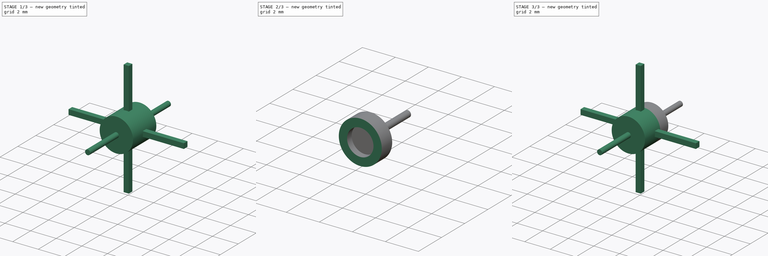
[diagram: build sequence overview — one tinted view per stage of 3, left to right]
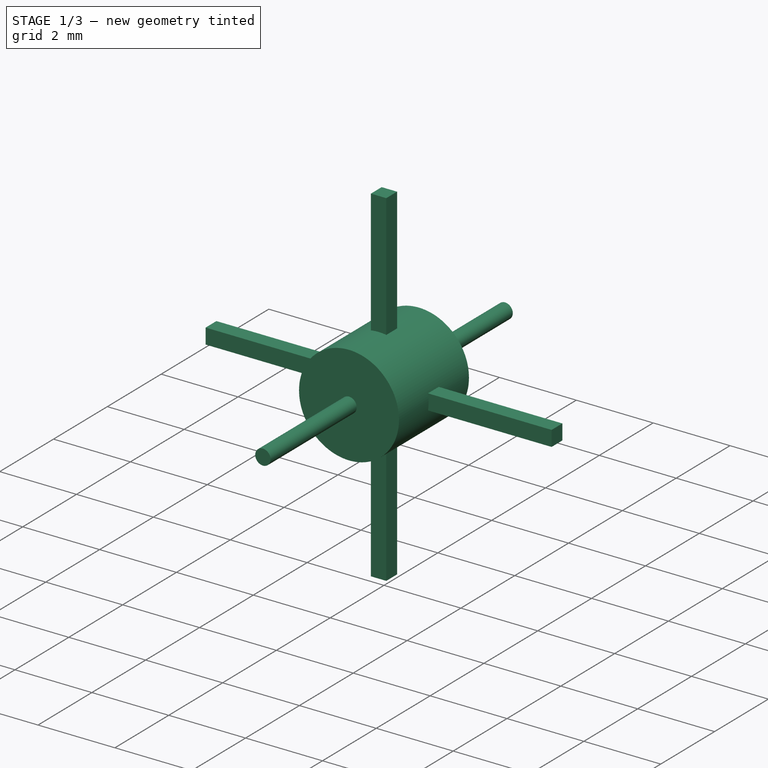
[diagram: stage 1 of 3 — iso view after this stage's code; geometry added in this stage tinted green]
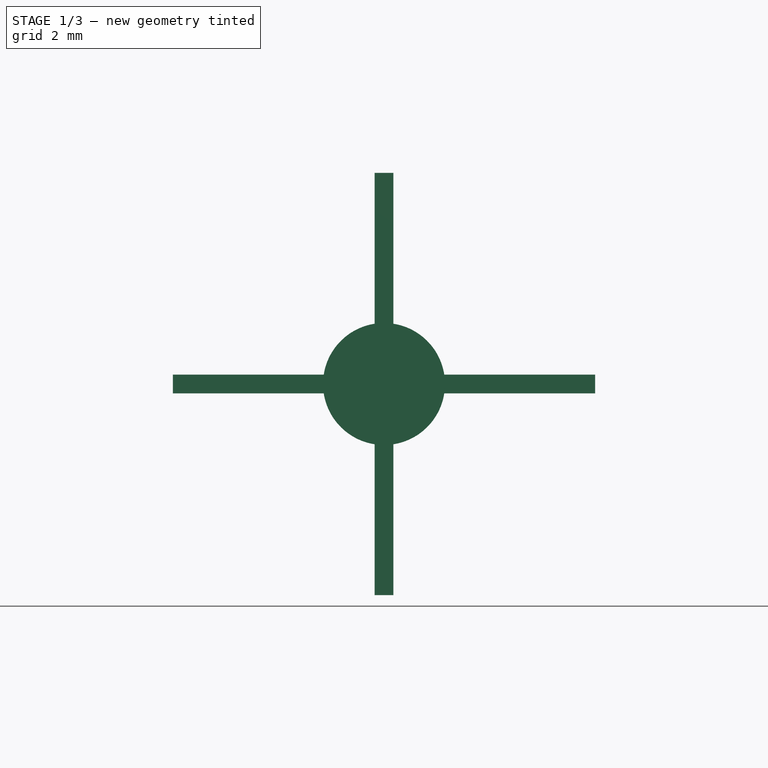
[diagram: stage 1 of 3 — front view after this stage's code; geometry added in this stage tinted green]
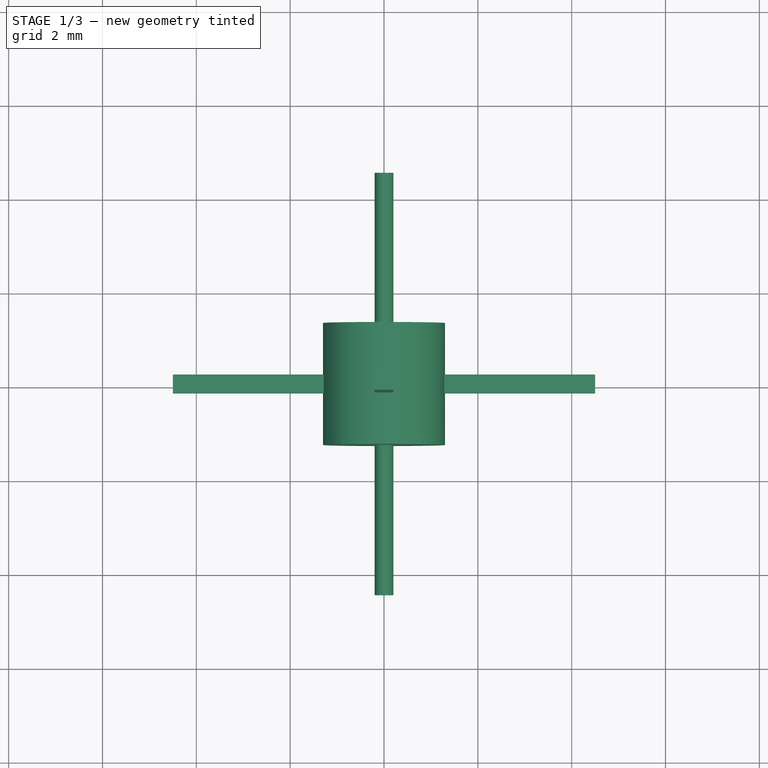
[diagram: stage 1 of 3 — top view after this stage's code; geometry added in this stage tinted green]
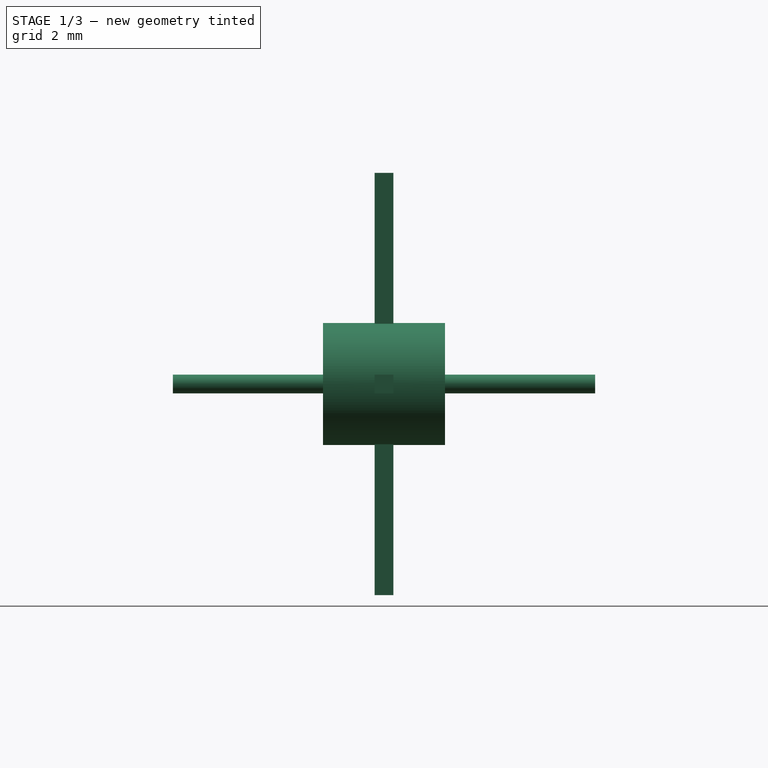
[diagram: stage 1 of 3 — right view after this stage's code; geometry added in this stage tinted green]
FCSTD DOCUMENT  (FreeCAD 0.19R24344 (Git))
Label: Magnet-Holder_2pc_6arms
Comment: Magnet holder to be glued together.
License: Creative Commons Attribution-NonCommercial-ShareAlike
LicenseURL: http://creativecommons.org/licenses/by-nc-sa/4.0/
objects: PartDesign::Body×3, Part::FeaturePython×3, Sketcher::SketchObject×2, PartDesign::FeatureBase×2, PartDesign::Revolution×1, PartDesign::Pad×1, Part::Feature×1, App::DocumentObjectGroup×1
note: 15 computed .brp shape members not serialized (recipe doc carries the construction recipe); baked Part::Feature solids carry a one-line shape summary decoded from their .brp

FEATURE [Sketcher::SketchObject] Sketch
  FullyConstrained = true
  MapMode = 5
  Support = -> [XY_Plane]
  sketch-geometry (12):
    g0: LineSegment StartX=-0.8 StartY=0.8 StartZ=0 EndX=-0.8 EndY=-0.8 EndZ=0
    g1: LineSegment StartX=-0.8 StartY=-0.8 StartZ=0 EndX=0 EndY=-0.8 EndZ=0
    g2: LineSegment StartX=0 StartY=-0.8 StartZ=0 EndX=0 EndY=-4.5 EndZ=0
    g3: LineSegment StartX=-0.2 StartY=-1.3 StartZ=0 EndX=-1.3 EndY=-1.3 EndZ=0
    g4: LineSegment StartX=-1.3 StartY=-1.3 StartZ=0 EndX=-1.3 EndY=1.3 EndZ=0
    g5: LineSegment StartX=-1.3 StartY=1.3 StartZ=0 EndX=-0.2 EndY=1.3 EndZ=0
    g6: LineSegment StartX=0 StartY=4.5 StartZ=0 EndX=0 EndY=0.8 EndZ=0
    g7: LineSegment StartX=0 StartY=0.8 StartZ=0 EndX=-0.8 EndY=0.8 EndZ=0
    g8: LineSegment StartX=-0.2 StartY=1.3 StartZ=0 EndX=-0.2 EndY=4.5 EndZ=0
    g9: LineSegment StartX=-0.2 StartY=4.5 StartZ=0 EndX=0 EndY=4.5 EndZ=0
    g10: LineSegment StartX=-0.2 StartY=-1.3 StartZ=0 EndX=-0.2 EndY=-4.5 EndZ=0
    g11: LineSegment StartX=-0.2 StartY=-4.5 StartZ=0 EndX=0 EndY=-4.5 EndZ=0
  constraints (34):
    c: Vertical(g0)
    c: Coincident(g1,g0)
    c: PointOnObject(g1,g-2)
    c: Horizontal(g1)
    c: Coincident(g2,g1)
    c: Horizontal(g3)
    c: Coincident(g4,g3)
    c: Vertical(g4)
    c: Coincident(g5,g4)
    c: Horizontal(g5)
    c: Coincident(g7,g6)
    c: Coincident(g7,g0)
    c: Horizontal(g7)
    c: DistanceY(g1,g6) = 1.6
    c: DistanceX(g0,g1) = 0.8
    c: DistanceY(g6,g5) = 0.5
    c: DistanceX(g4,g0) = 0.5
    c: Symmetric(g1,g6,g-1)
    c: Vertical(g8)
    c: Coincident(g9,g8)
    c: PointOnObject(g9,g-2)
    c: Horizontal(g9)
    c: Coincident(g5,g8)
    c: Coincident(g6,g9)
    c: DistanceX(g8,g6) = 0.2
    c: Coincident(g10,g3)
    c: Vertical(g10)
    c: Coincident(g11,g10)
    c: DistanceY(g3,g0) = 0.5
    c: Coincident(g2,g11)
    c: Horizontal(g11)
    c: DistanceX(g10,g2) = 0.2
    c: DistanceY(g2,g6) = 9
    c: Symmetric(g6,g2,g-1)
FEATURE [PartDesign::Revolution] Revolution
  Angle = 360
  Axis = (0,1,0)
  Base = (0,0,0)
  Profile = -> Sketch
  ReferenceAxis = -> Sketch [V_Axis]
FEATURE [Sketcher::SketchObject] Sketch001
  FullyConstrained = true
  MapMode = 5
  Placement = pos=(0,0,0) rot=(1,0,0;1.5708rad)
  Support = -> [XZ_Plane]
  sketch-geometry (16):
    g0: LineSegment StartX=-0.2 StartY=4.5 StartZ=0 EndX=0.2 EndY=4.5 EndZ=0
    g1: LineSegment StartX=0.2 StartY=-0.8 StartZ=0 EndX=0.2 EndY=-4.5 EndZ=0
    g2: LineSegment StartX=0.2 StartY=-4.5 StartZ=0 EndX=-0.2 EndY=-4.5 EndZ=0
    g3: LineSegment StartX=4.5 StartY=0.2 StartZ=0 EndX=4.5 EndY=-0.2 EndZ=0
    g4: LineSegment StartX=-4.5 StartY=-0.2 StartZ=0 EndX=-4.5 EndY=0.2 EndZ=0
    g5: LineSegment StartX=0.2 StartY=4.5 StartZ=0 EndX=0.2 EndY=0.8 EndZ=0
    g6: LineSegment StartX=0.8 StartY=0.2 StartZ=0 EndX=4.5 EndY=0.2 EndZ=0
    g7: LineSegment StartX=-0.2 StartY=-4.5 StartZ=0 EndX=-0.2 EndY=-0.8 EndZ=0
    g8: LineSegment StartX=-4.5 StartY=-0.2 StartZ=0 EndX=-0.8 EndY=-0.2 EndZ=0
    g9: LineSegment StartX=-0.2 StartY=-0.8 StartZ=0 EndX=0.2 EndY=-0.8 EndZ=0
    g10: LineSegment StartX=-4.5 StartY=0.2 StartZ=0 EndX=-0.8 EndY=0.2 EndZ=0
    g11: LineSegment StartX=-0.8 StartY=0.2 StartZ=0 EndX=-0.8 EndY=-0.2 EndZ=0
    g12: LineSegment StartX=-0.2 StartY=4.5 StartZ=0 EndX=-0.2 EndY=0.8 EndZ=0
    g13: LineSegment StartX=-0.2 StartY=0.8 StartZ=0 EndX=0.2 EndY=0.8 EndZ=0
    g14: LineSegment StartX=0.8 StartY=0.2 StartZ=0 EndX=0.8 EndY=-0.2 EndZ=0
    g15: LineSegment StartX=0.8 StartY=-0.2 StartZ=0 EndX=4.5 EndY=-0.2 EndZ=0
  constraints (43):
    c: Coincident(g1,g2)
    c: Horizontal(g2)
    c: Distance(g0) = 0.4
    c: Distance(g3) = 0.4
    c: Symmetric(g0,g1,g-1)
    c: Symmetric(g0,g0,g-2)
    c: Coincident(g5,g0)
    c: Coincident(g6,g3)
    c: Coincident(g7,g2)
    c: Vertical(g7)
    c: Horizontal(g6)
    c: Vertical(g1)
    c: Coincident(g8,g4)
    c: Horizontal(g8)
    c: Symmetric(g3,g3,g-1)
    c: Symmetric(g4,g4,g-1)
    c: DistanceX(g2,g1) = 0.4
    c: DistanceY(g1,g0) = 9
    c: DistanceX(g4,g3) = 9
    c: Symmetric(g4,g3,g-2)
    c: DistanceY(g1,g-1) = 0.8
    c: Horizontal(g7,g1)
    c: Coincident(g9,g7)
    c: Coincident(g9,g1)
    c: Coincident(g10,g4)
    c: Horizontal(g10)
    c: Coincident(g11,g10)
    c: Coincident(g11,g8)
    c: Vertical(g11)
    c: Coincident(g12,g0)
    c: Vertical(g12)
    c: Coincident(g13,g12)
    c: Horizontal(g13)
    c: Coincident(g5,g13)
    c: Vertical(g5)
    c: DistanceY(g-1,g12) = 0.8
    c: Coincident(g14,g6)
    c: Vertical(g14)
    c: Coincident(g15,g14)
    c: Coincident(g15,g3)
    c: Horizontal(g15)
    c: DistanceX(g-1,g6) = 0.8
    c: DistanceX(g10,g-1) = 0.8
FEATURE [PartDesign::Pad] Pad
  BaseFeature = -> Revolution
  Direction = (1,1,1)
  Length = 0.4
  Length2 = 100
  Midplane = true
  Profile = -> Sketch001
  Type = 0
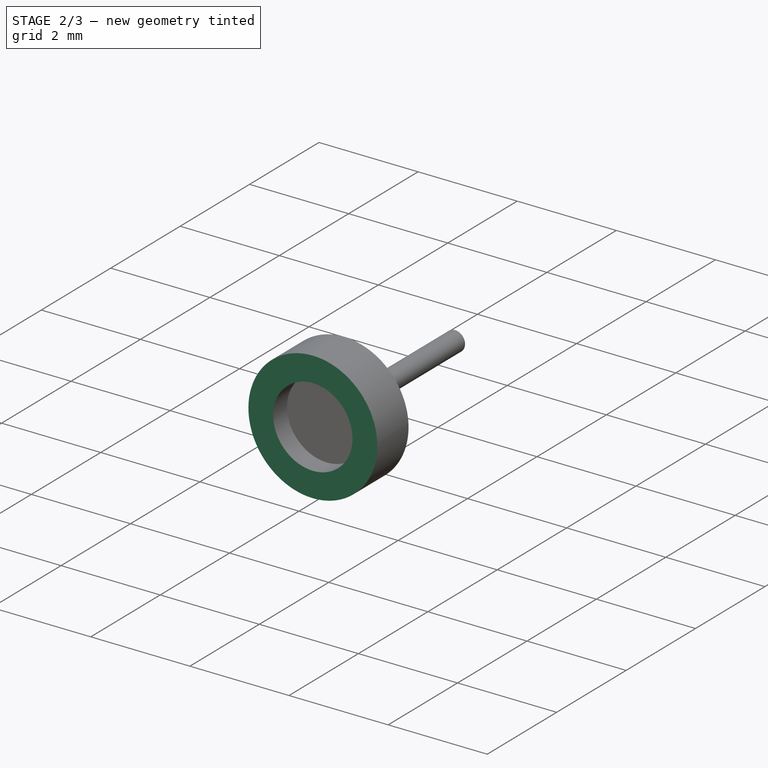
[diagram: stage 2 of 3 — iso view after this stage's code; geometry added in this stage tinted green]
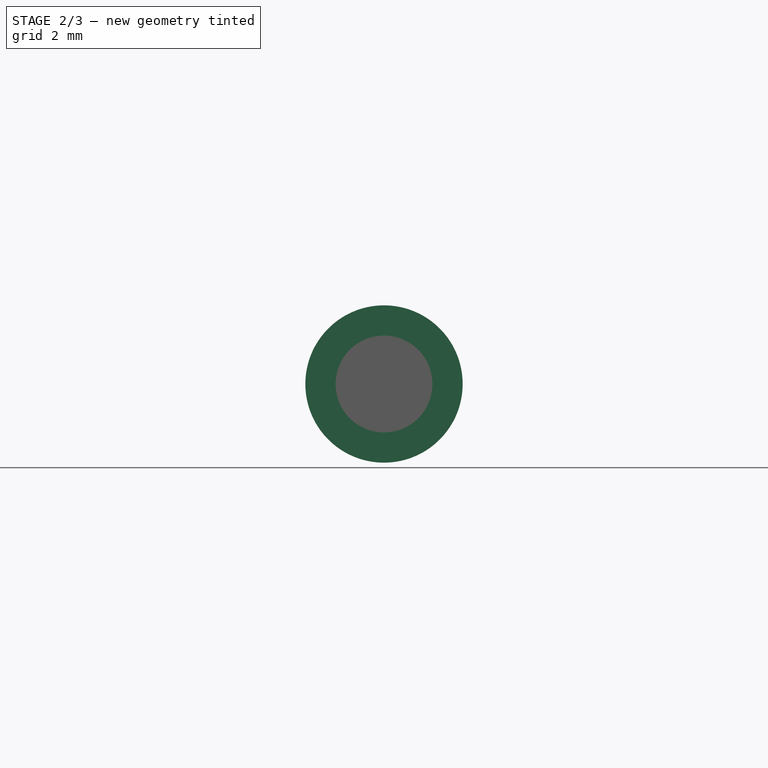
[diagram: stage 2 of 3 — front view after this stage's code; geometry added in this stage tinted green]
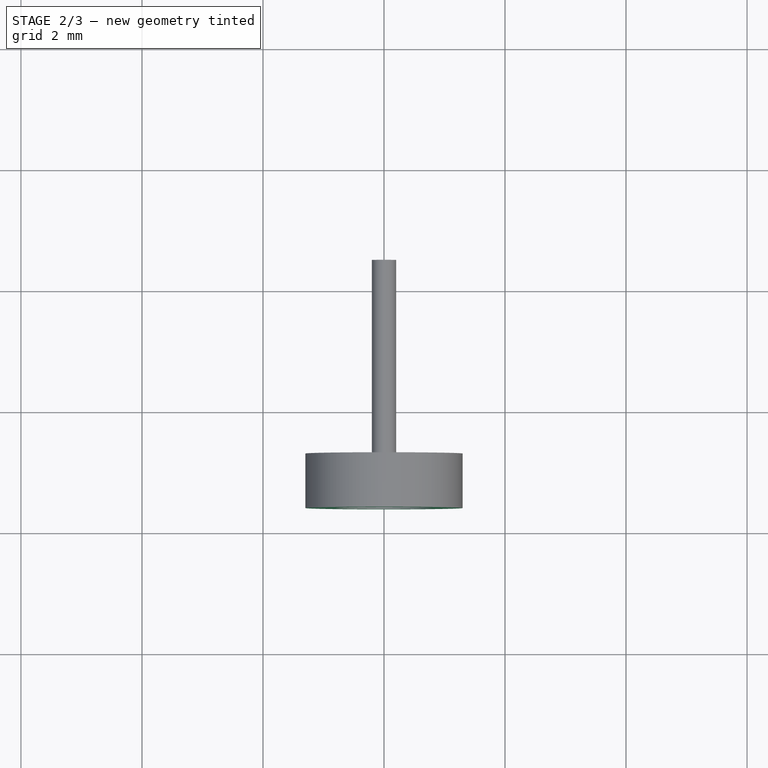
[diagram: stage 2 of 3 — top view after this stage's code; geometry added in this stage tinted green]
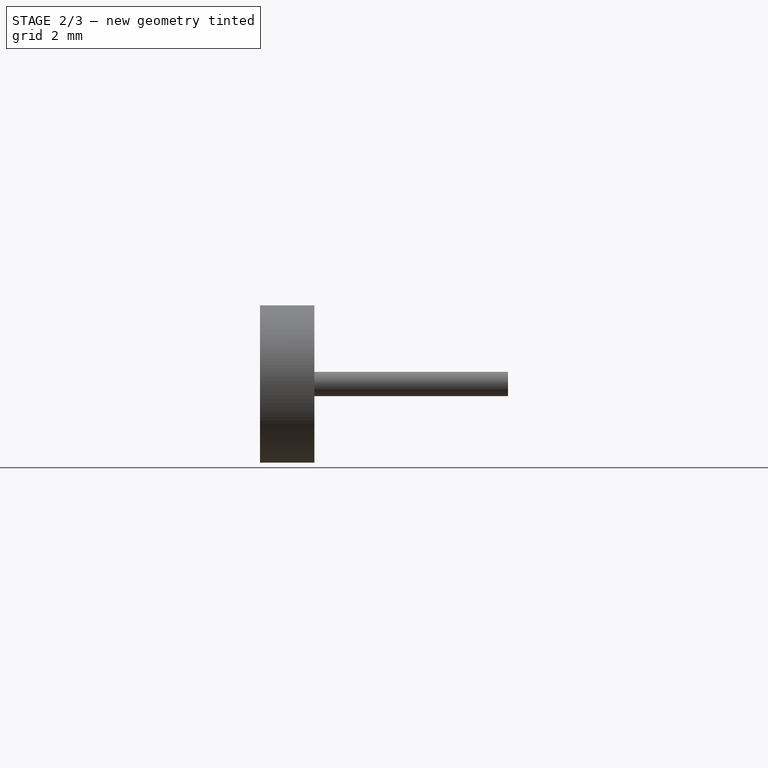
[diagram: stage 2 of 3 — right view after this stage's code; geometry added in this stage tinted green]
FEATURE [PartDesign::Body] Body
  Group = -> [Sketch,Revolution,Sketch001,Pad]
  Origin = -> Origin
  Tip = -> Pad
FEATURE [Part::Feature] Face
  shape: bbox 4.427 x 2e-07 x 5.002 mm, 1 faces, 0 solids (baked)
FEATURE [Part::FeaturePython] Slice  # WARN: FeaturePython — macro-defined, semantics opaque (R4)
  Base = -> Pad
  Mode = 1
  Tolerance = 0
  Tools = -> [Face]
FEATURE [Part::FeaturePython] Slice_child1  label="Slice.1"  # WARN: FeaturePython — macro-defined, semantics opaque (R4)
  Base = -> Slice
  FilterType = 1
  Invert = false
  OverrideMaxVal = 0
  WindowFrom = 80
  WindowTo = 100
  items = 1
FEATURE [PartDesign::Body] Body001
  BaseFeature = -> Slice_child0
  Group = -> [BaseFeature]
  Origin = -> Origin001
  Placement = pos=(7,1,0) rot=(0,0,1;3.14159rad)
  Tip = -> BaseFeature
FEATURE [PartDesign::FeatureBase] BaseFeature001
  BaseFeature = -> Slice_child1
FEATURE [PartDesign::Body] Body002
  BaseFeature = -> Slice_child1
  Group = -> [BaseFeature001]
  Origin = -> Origin002
  Tip = -> BaseFeature001
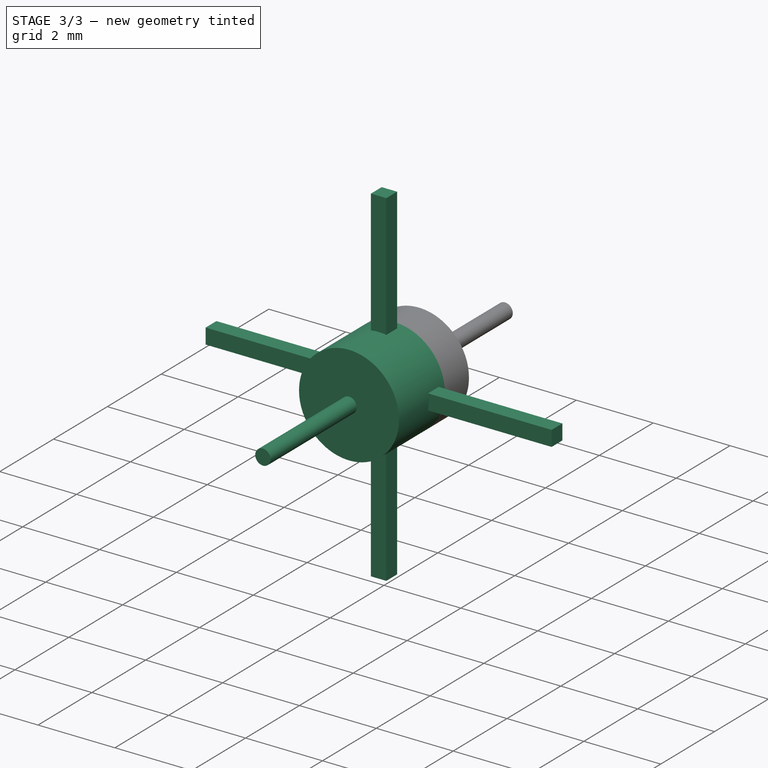
[diagram: stage 3 of 3 — iso view after this stage's code; geometry added in this stage tinted green]
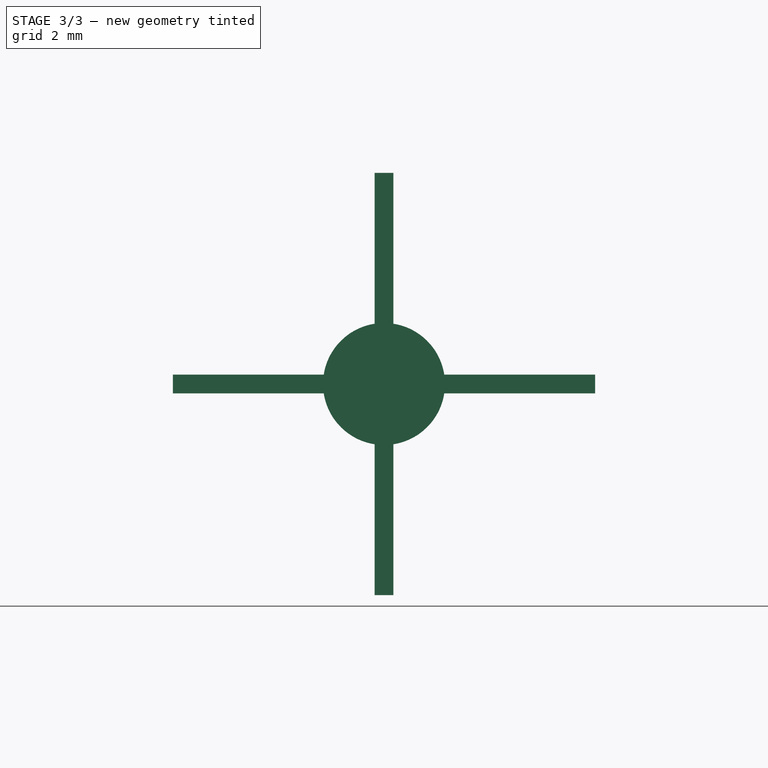
[diagram: stage 3 of 3 — front view after this stage's code; geometry added in this stage tinted green]
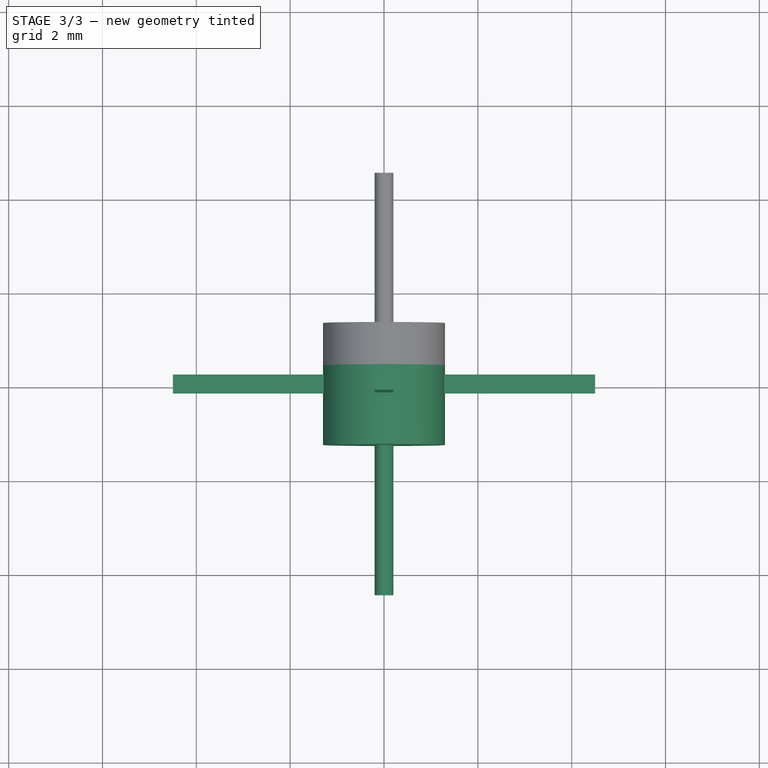
[diagram: stage 3 of 3 — top view after this stage's code; geometry added in this stage tinted green]
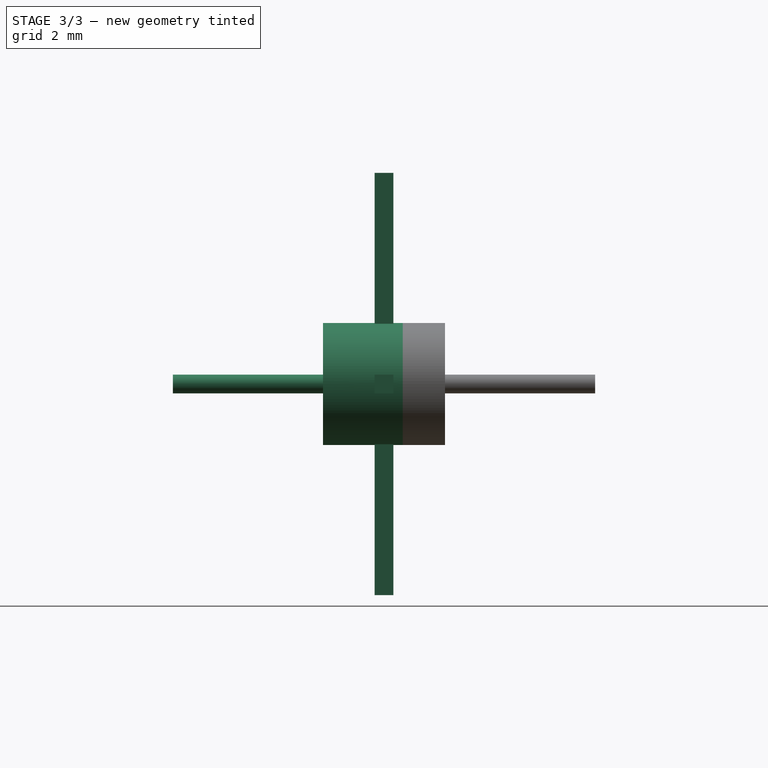
[diagram: stage 3 of 3 — right view after this stage's code; geometry added in this stage tinted green]
FEATURE [Part::FeaturePython] Slice_child0  label="Slice.0"  # WARN: FeaturePython — macro-defined, semantics opaque (R4)
  Base = -> Slice
  FilterType = 1
  Invert = false
  OverrideMaxVal = 0
  Placement = pos=(7,1,0) rot=(0,0,1;3.14159rad)
  WindowFrom = 80
  WindowTo = 100
  items = 0
FEATURE [App::DocumentObjectGroup] GrExplode_Slice  label="Exploded Slice"
  Group = -> [Slice_child0,Slice_child1]
FEATURE [PartDesign::FeatureBase] BaseFeature
  BaseFeature = -> Slice_child0
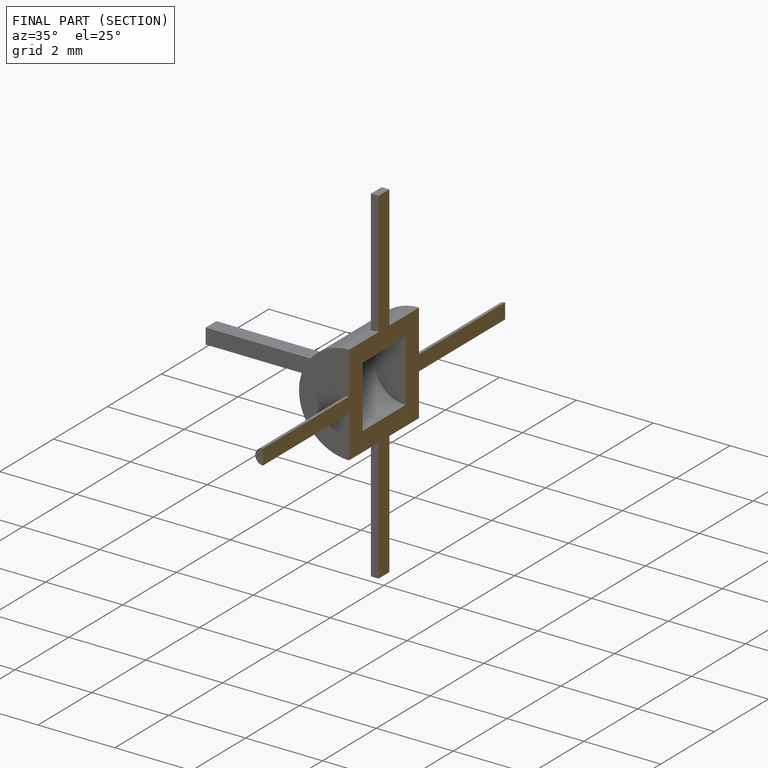
[diagram: finished part — half-section view (interior)]
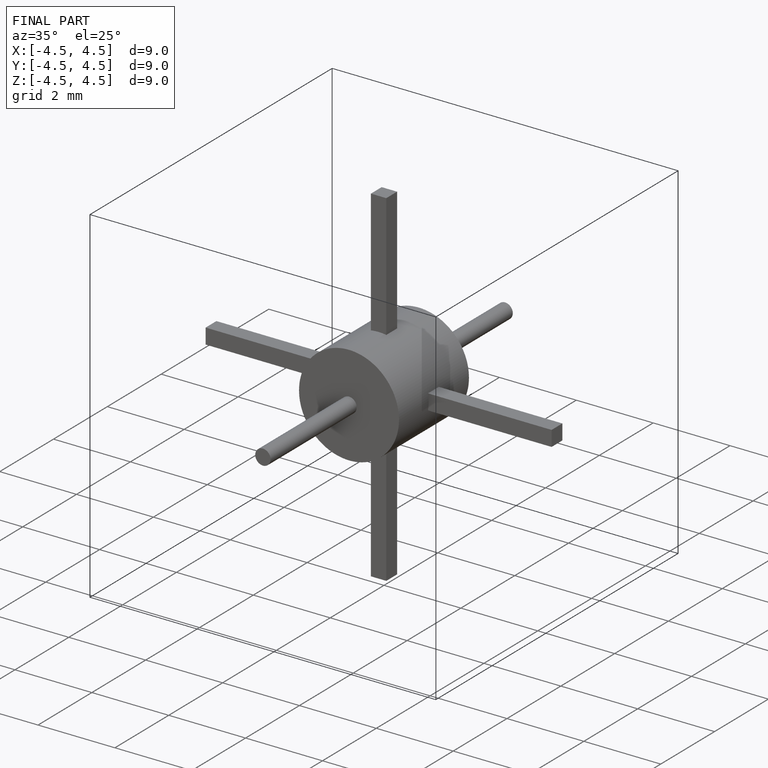
[diagram: finished part — iso view with bounding-box wireframe]
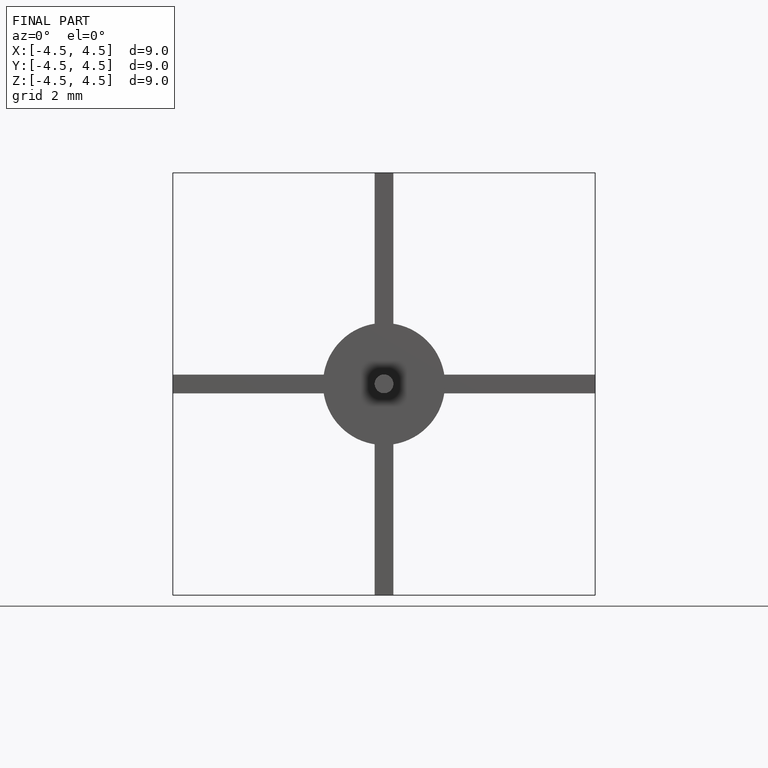
[diagram: finished part — front view with bounding-box wireframe]
